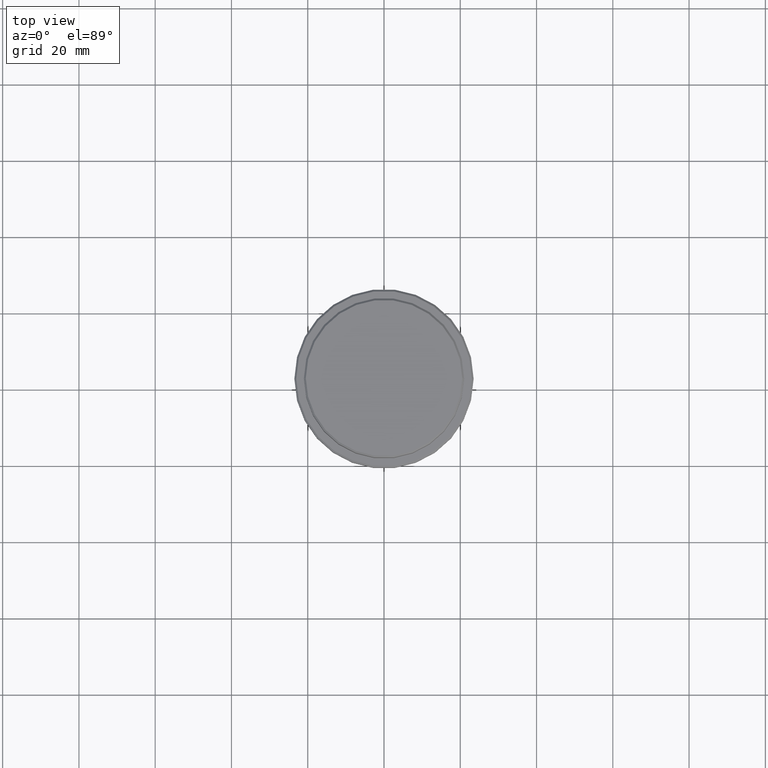
[diagram: clean part render]
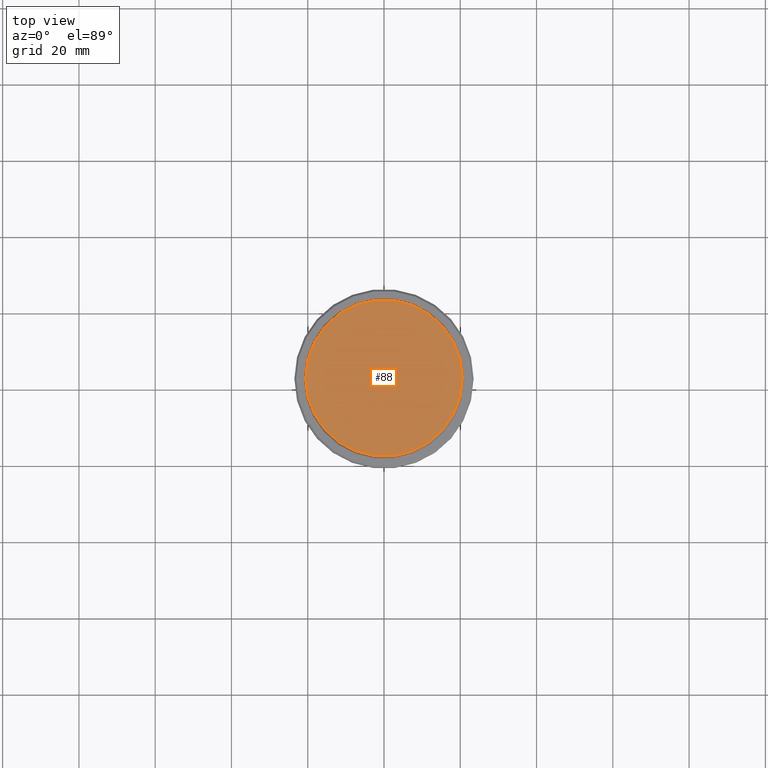
[diagram: same view with one face highlighted and labeled with its STEP entity id]
A machine part, top view. The second image highlights one B-rep face of the part: STEP entity #88.
In plain terms, the highlighted planar face has unit normal (0, -0, 1).
Its self-contained STEP definition (entity closure, byte-faithful):
#73 = DIRECTION ( 'NONE',  ( 0.000000000000000000, -0.000000000000000000, 1.000000000000000000 ) ) ;
#88 = ADVANCED_FACE ( 'NONE', ( #514 ), #1192, .T. ) ;
#125 = AXIS2_PLACEMENT_3D ( 'NONE', #777, #1221, #237 ) ;
#208 = CARTESIAN_POINT ( 'NONE',  ( 0.000000000000000000, 0.000000000000000000, 0.000000000000000000 ) ) ;
#237 = DIRECTION ( 'NONE',  ( 1.000000000000000000, 0.000000000000000000, 0.000000000000000000 ) ) ;
#345 = AXIS2_PLACEMENT_3D ( 'NONE', #208, #73, #1388 ) ;
#350 = CIRCLE ( 'NONE', #1063, 20.49999999999998934 ) ;
#431 = ORIENTED_EDGE ( 'NONE', *, *, #672, .T. ) ;
#514 = FACE_OUTER_BOUND ( 'NONE', #799, .T. ) ;
#646 = CARTESIAN_POINT ( 'NONE',  ( 20.49999999999998934, 2.541142108230757480E-15, 0.000000000000000000 ) ) ;
#672 = EDGE_CURVE ( 'NONE', #859, #939, #350, .T. ) ;
#707 = DIRECTION ( 'NONE',  ( -0.000000000000000000, -0.000000000000000000, 1.000000000000000000 ) ) ;
#777 = CARTESIAN_POINT ( 'NONE',  ( 0.000000000000000000, 0.000000000000000000, 0.000000000000000000 ) ) ;
#792 = CARTESIAN_POINT ( 'NONE',  ( 0.000000000000000000, 0.000000000000000000, 0.000000000000000000 ) ) ;
#799 = EDGE_LOOP ( 'NONE', ( #431, #1182 ) ) ;
#859 = VERTEX_POINT ( 'NONE', #968 ) ;
#878 = CIRCLE ( 'NONE', #125, 20.49999999999998934 ) ;
#917 = DIRECTION ( 'NONE',  ( 1.000000000000000000, 0.000000000000000000, 0.000000000000000000 ) ) ;
#939 = VERTEX_POINT ( 'NONE', #646 ) ;
#968 = CARTESIAN_POINT ( 'NONE',  ( -20.49999999999998934, 0.000000000000000000, 0.000000000000000000 ) ) ;
#1063 = AXIS2_PLACEMENT_3D ( 'NONE', #792, #707, #917 ) ;
#1182 = ORIENTED_EDGE ( 'NONE', *, *, #1186, .T. ) ;
#1186 = EDGE_CURVE ( 'NONE', #939, #859, #878, .T. ) ;
#1192 = PLANE ( 'NONE',  #345 ) ;
#1221 = DIRECTION ( 'NONE',  ( -0.000000000000000000, -0.000000000000000000, 1.000000000000000000 ) ) ;
#1388 = DIRECTION ( 'NONE',  ( 1.000000000000000000, 0.000000000000000000, 0.000000000000000000 ) ) ;